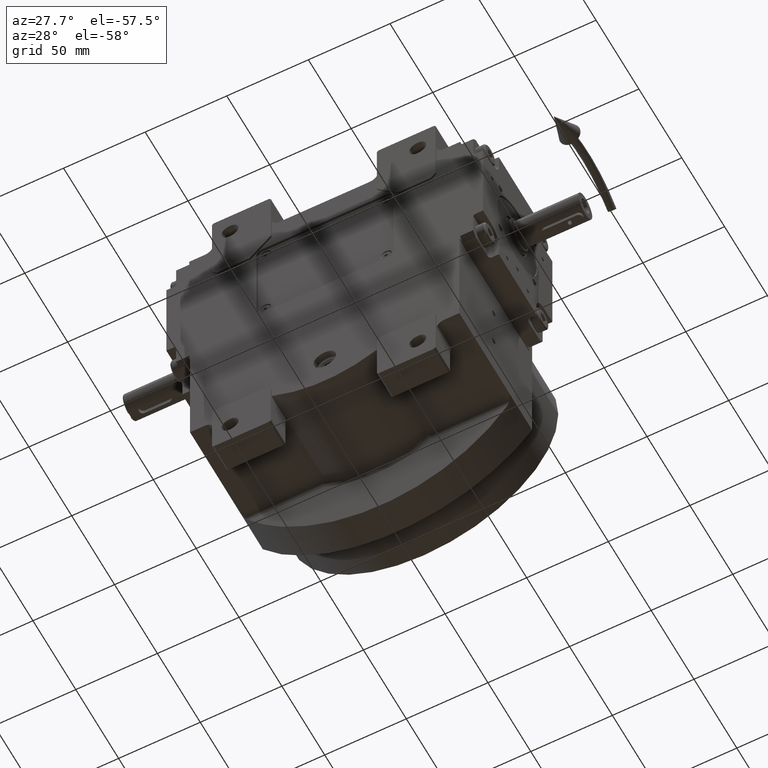
[diagram: clean part render]
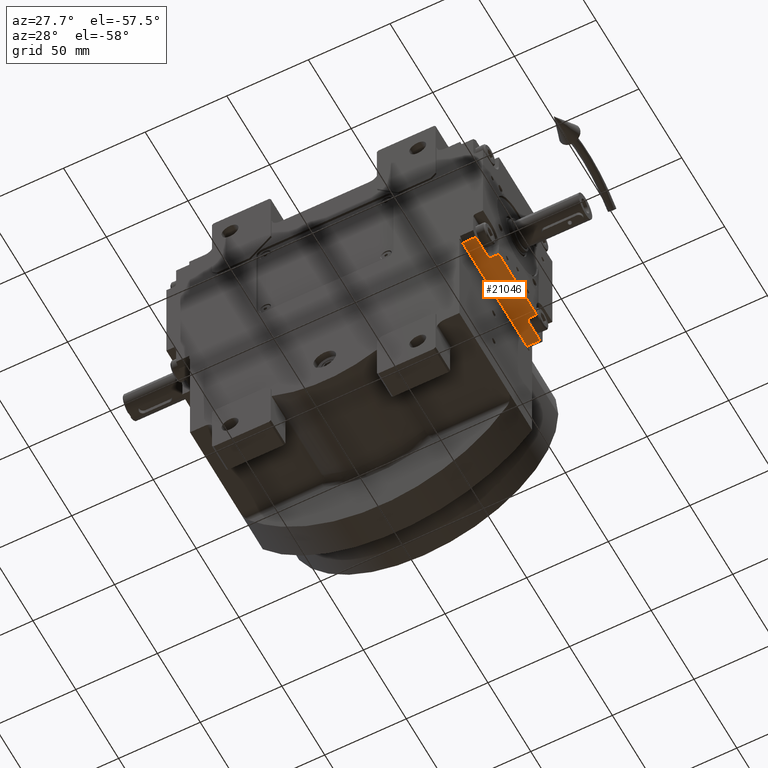
[diagram: same view with one face highlighted and labeled with its STEP entity id]
A machine part, auxiliary view. The second image highlights one B-rep face of the part: STEP entity #21046.
In plain terms, the highlighted planar face has unit normal (0, 0, -1).
Its self-contained STEP definition (entity closure, byte-faithful):
#208 = VERTEX_POINT ( 'NONE', #41662 ) ;
#471 = CARTESIAN_POINT ( 'NONE',  ( -37.49999999999920419, 5.273559366969493567E-13, 48.99999999999947420 ) ) ;
#1920 = DIRECTION ( 'NONE',  ( -1.000000000000000000, 2.515349040166368078E-14, -6.938893903907222067E-15 ) ) ;
#2060 = EDGE_CURVE ( 'NONE', #18271, #42335, #59325, .T. ) ;
#2358 = EDGE_CURVE ( 'NONE', #208, #18564, #57334, .T. ) ;
#2921 = AXIS2_PLACEMENT_3D ( 'NONE', #47508, #41056, #1920 ) ;
#3256 = LINE ( 'NONE', #37228, #14871 ) ;
#3667 = ORIENTED_EDGE ( 'NONE', *, *, #2060, .F. ) ;
#4279 = CARTESIAN_POINT ( 'NONE',  ( -37.49999999999920419, -7.999999999999466205, 48.99999999999947420 ) ) ;
#5051 = VERTEX_POINT ( 'NONE', #8283 ) ;
#5881 = CARTESIAN_POINT ( 'NONE',  ( -21.99999999999920774, -13.99999999999947065, 48.99999999999973710 ) ) ;
#6926 = CARTESIAN_POINT ( 'NONE',  ( -21.99999999999920774, -13.99999999999947065, 48.99999999999973710 ) ) ;
#8245 = FACE_OUTER_BOUND ( 'NONE', #44488, .T. ) ;
#8283 = CARTESIAN_POINT ( 'NONE',  ( -21.99999999999933920, -9.999999999999481304, 48.99999999999947420 ) ) ;
#8336 = CARTESIAN_POINT ( 'NONE',  ( 37.50000000000078870, -1.054711873393898713E-12, 49.00000000000000000 ) ) ;
#9642 = DIRECTION ( 'NONE',  ( 2.320366121466573698E-14, -1.000000000000000000, 2.109423746787906290E-15 ) ) ;
#11370 = CARTESIAN_POINT ( 'NONE',  ( 37.50000000000078870, -8.000000000001062261, 49.00000000000000000 ) ) ;
#13191 = LINE ( 'NONE', #8336, #17495 ) ;
#13714 = DIRECTION ( 'NONE',  ( 1.000000000000000000, -2.320366121466573698E-14, 8.437694987151233883E-15 ) ) ;
#14366 = ORIENTED_EDGE ( 'NONE', *, *, #46846, .T. ) ;
#14871 = VECTOR ( 'NONE', #37544, 1000.000000000000000 ) ;
#16639 = DIRECTION ( 'NONE',  ( 1.000000000000000000, -2.320366121466573698E-14, 8.437694987151233883E-15 ) ) ;
#16992 = CARTESIAN_POINT ( 'NONE',  ( -21.99999999999920774, -13.99999999999947065, 48.99999999999973710 ) ) ;
#17273 = LINE ( 'NONE', #6926, #53509 ) ;
#17382 = CIRCLE ( 'NONE', #31803, 2.000000000000000000 ) ;
#17495 = VECTOR ( 'NONE', #52294, 1000.000000000000000 ) ;
#17953 = DIRECTION ( 'NONE',  ( -8.437694987151282793E-15, -2.109423746787514226E-15, 1.000000000000000000 ) ) ;
#18271 = VERTEX_POINT ( 'NONE', #44044 ) ;
#18564 = VERTEX_POINT ( 'NONE', #52063 ) ;
#18989 = EDGE_CURVE ( 'NONE', #57154, #25085, #20528, .T. ) ;
#20528 = CIRCLE ( 'NONE', #2921, 2.000000000000001776 ) ;
#21046 = ADVANCED_FACE ( 'NONE', ( #8245 ), #33139, .T. ) ;
#21852 = LINE ( 'NONE', #16992, #26517 ) ;
#22210 = ORIENTED_EDGE ( 'NONE', *, *, #23930, .T. ) ;
#22356 = ORIENTED_EDGE ( 'NONE', *, *, #18989, .T. ) ;
#23930 = EDGE_CURVE ( 'NONE', #40067, #28155, #17273, .T. ) ;
#25085 = VERTEX_POINT ( 'NONE', #57204 ) ;
#25204 = LINE ( 'NONE', #43968, #54286 ) ;
#26263 = EDGE_CURVE ( 'NONE', #18271, #208, #53300, .T. ) ;
#26450 = ORIENTED_EDGE ( 'NONE', *, *, #59192, .T. ) ;
#26517 = VECTOR ( 'NONE', #51883, 1000.000000000000000 ) ;
#26519 = ORIENTED_EDGE ( 'NONE', *, *, #43685, .F. ) ;
#26652 = CARTESIAN_POINT ( 'NONE',  ( -23.99999999999934275, -9.999999999999481304, 48.99999999999947420 ) ) ;
#28155 = VERTEX_POINT ( 'NONE', #62971 ) ;
#30432 = VERTEX_POINT ( 'NONE', #11370 ) ;
#31171 = DIRECTION ( 'NONE',  ( -2.255140518769849223E-14, 1.000000000000000000, -3.469446951953614189E-15 ) ) ;
#31803 = AXIS2_PLACEMENT_3D ( 'NONE', #26652, #45426, #31171 ) ;
#32613 = AXIS2_PLACEMENT_3D ( 'NONE', #62540, #17953, #13714 ) ;
#32624 = VECTOR ( 'NONE', #38561, 1000.000000000000000 ) ;
#32985 = VECTOR ( 'NONE', #9642, 1000.000000000000000 ) ;
#33139 = PLANE ( 'NONE',  #32613 ) ;
#34148 = ORIENTED_EDGE ( 'NONE', *, *, #49880, .F. ) ;
#34760 = DIRECTION ( 'NONE',  ( 1.000000000000000000, -2.320366121466573698E-14, 8.437694987151233883E-15 ) ) ;
#37228 = CARTESIAN_POINT ( 'NONE',  ( 22.00000000000078870, -14.00000000000052580, 49.00000000000000000 ) ) ;
#37544 = DIRECTION ( 'NONE',  ( -2.320366121466573698E-14, 1.000000000000000000, -2.109423746787906290E-15 ) ) ;
#38561 = DIRECTION ( 'NONE',  ( 1.000000000000000000, -2.320366121466573698E-14, 8.437694987151233883E-15 ) ) ;
#40067 = VERTEX_POINT ( 'NONE', #5881 ) ;
#41056 = DIRECTION ( 'NONE',  ( -8.437694987151237039E-15, 2.109423746787905501E-15, -1.000000000000000000 ) ) ;
#41662 = CARTESIAN_POINT ( 'NONE',  ( -37.49999999999920419, -7.999999999999466205, 48.99999999999947420 ) ) ;
#42335 = VERTEX_POINT ( 'NONE', #48084 ) ;
#43685 = EDGE_CURVE ( 'NONE', #42335, #30432, #13191, .T. ) ;
#43968 = CARTESIAN_POINT ( 'NONE',  ( 24.00000000000066080, -8.000000000001033840, 49.00000000000000000 ) ) ;
#44044 = CARTESIAN_POINT ( 'NONE',  ( -37.49999999999920419, 5.273559366969493567E-13, 48.99999999999947420 ) ) ;
#44488 = EDGE_LOOP ( 'NONE', ( #26519, #3667, #57295, #60324, #55918, #34148, #22210, #14366, #22356, #26450 ) ) ;
#44981 = VECTOR ( 'NONE', #34760, 1000.000000000000000 ) ;
#45426 = DIRECTION ( 'NONE',  ( -8.437694987151237039E-15, 2.109423746787905501E-15, -1.000000000000000000 ) ) ;
#46846 = EDGE_CURVE ( 'NONE', #28155, #57154, #3256, .T. ) ;
#47508 = CARTESIAN_POINT ( 'NONE',  ( 24.00000000000066080, -10.00000000000103562, 49.00000000000000000 ) ) ;
#48084 = CARTESIAN_POINT ( 'NONE',  ( 37.50000000000078870, -1.054711873393898713E-12, 49.00000000000000000 ) ) ;
#48478 = CARTESIAN_POINT ( 'NONE',  ( -37.49999999999920419, 5.273559366969493567E-13, 48.99999999999947420 ) ) ;
#49880 = EDGE_CURVE ( 'NONE', #40067, #5051, #21852, .T. ) ;
#49981 = CARTESIAN_POINT ( 'NONE',  ( 22.00000000000065725, -10.00000000000053646, 49.00000000000000000 ) ) ;
#51883 = DIRECTION ( 'NONE',  ( -2.320366121466573698E-14, 1.000000000000000000, -2.109423746787906290E-15 ) ) ;
#52063 = CARTESIAN_POINT ( 'NONE',  ( -23.99999999999934275, -7.999999999999479527, 48.99999999999947420 ) ) ;
#52294 = DIRECTION ( 'NONE',  ( 2.320366121466573698E-14, -1.000000000000000000, 2.109423746787906290E-15 ) ) ;
#52819 = EDGE_CURVE ( 'NONE', #18564, #5051, #17382, .T. ) ;
#53300 = LINE ( 'NONE', #48478, #32985 ) ;
#53509 = VECTOR ( 'NONE', #16639, 1000.000000000000000 ) ;
#54286 = VECTOR ( 'NONE', #58858, 1000.000000000000000 ) ;
#55918 = ORIENTED_EDGE ( 'NONE', *, *, #52819, .T. ) ;
#57154 = VERTEX_POINT ( 'NONE', #49981 ) ;
#57204 = CARTESIAN_POINT ( 'NONE',  ( 24.00000000000066080, -8.000000000001033840, 49.00000000000000000 ) ) ;
#57295 = ORIENTED_EDGE ( 'NONE', *, *, #26263, .T. ) ;
#57334 = LINE ( 'NONE', #4279, #32624 ) ;
#58858 = DIRECTION ( 'NONE',  ( 1.000000000000000000, -2.320366121466573698E-14, 8.437694987151233883E-15 ) ) ;
#59192 = EDGE_CURVE ( 'NONE', #25085, #30432, #25204, .T. ) ;
#59325 = LINE ( 'NONE', #471, #44981 ) ;
#60324 = ORIENTED_EDGE ( 'NONE', *, *, #2358, .T. ) ;
#62540 = CARTESIAN_POINT ( 'NONE',  ( -40.49999999999921130, 5.273559366969493567E-13, 48.99999999999947420 ) ) ;
#62971 = CARTESIAN_POINT ( 'NONE',  ( 22.00000000000078870, -14.00000000000052580, 49.00000000000000000 ) ) ;